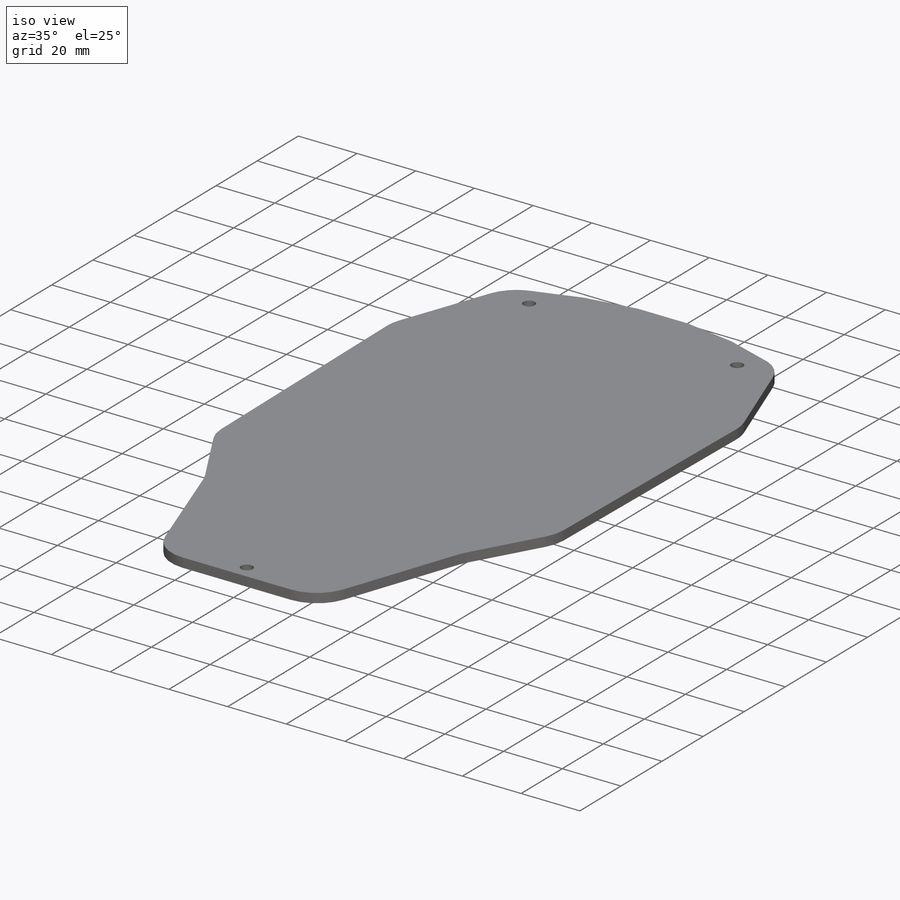
[diagram: iso view]
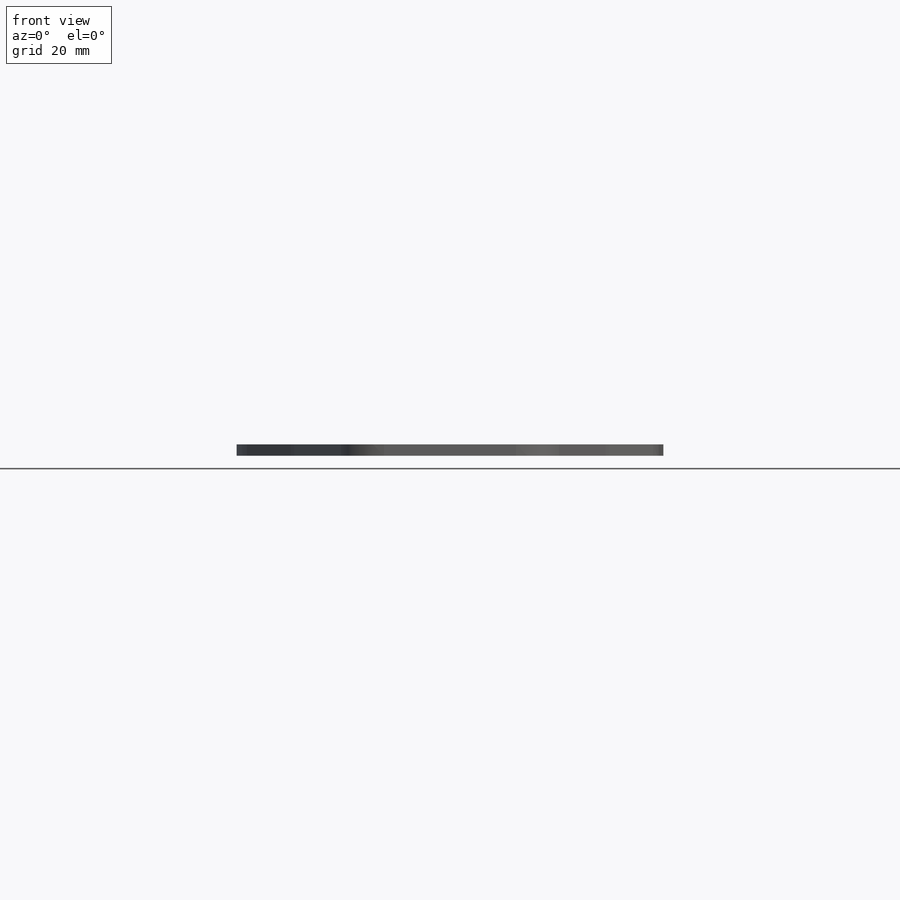
[diagram: front view]
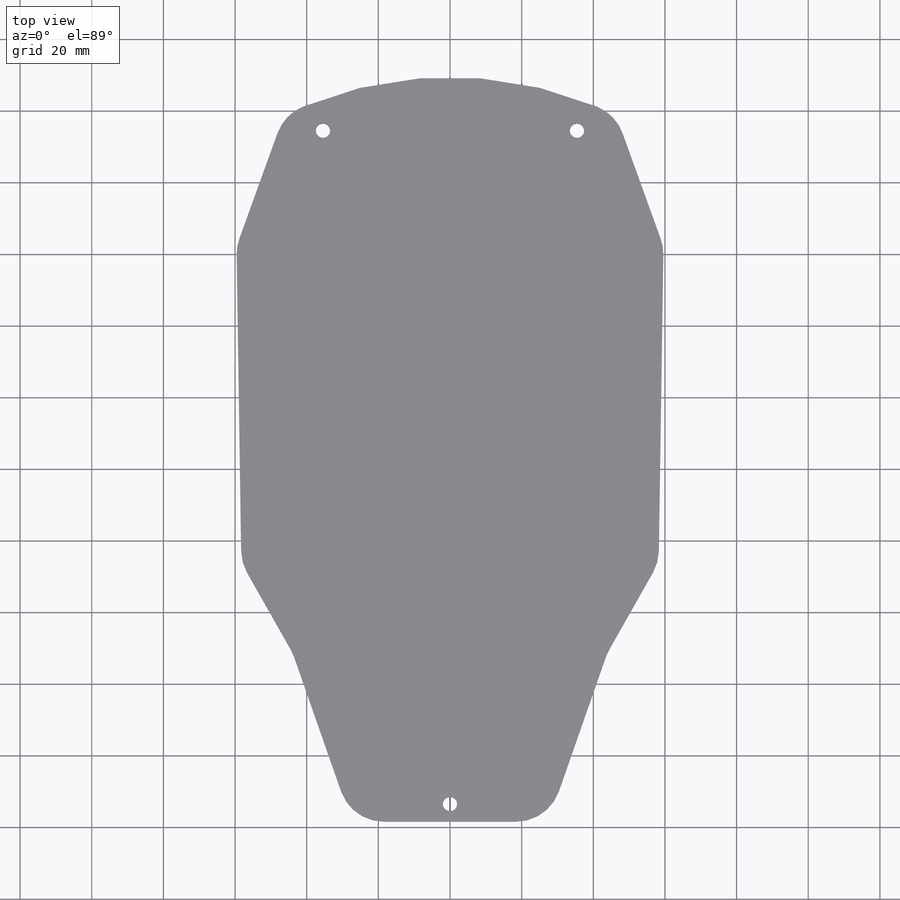
[diagram: top view]
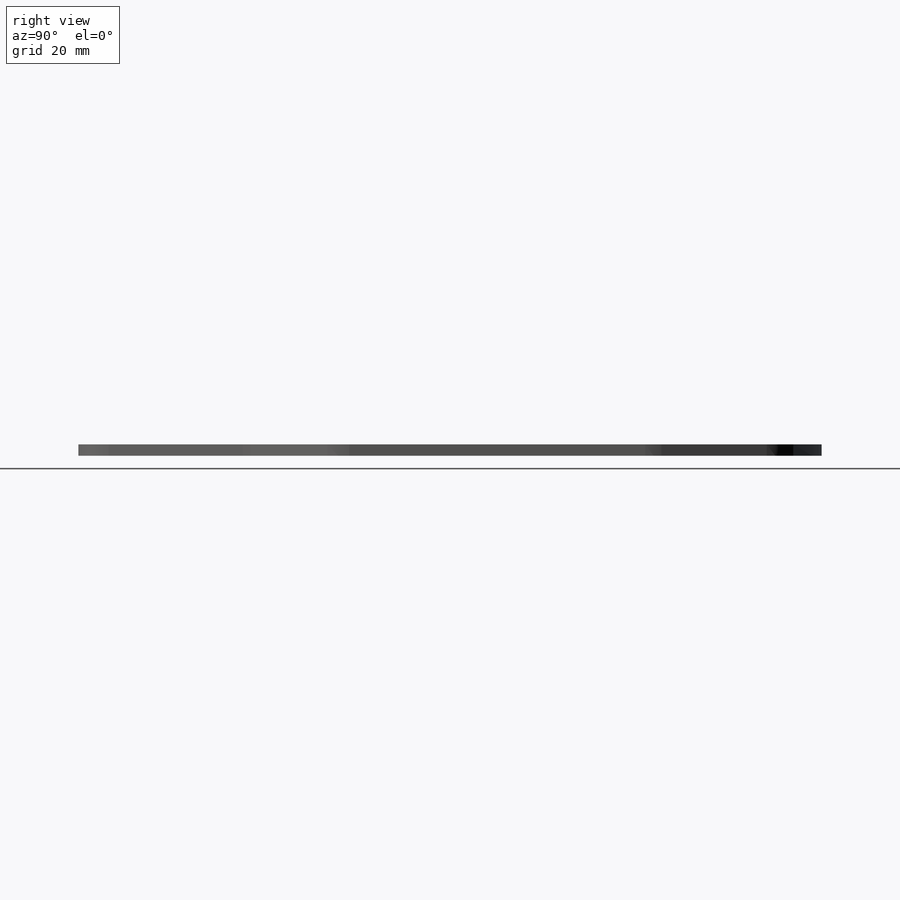
[diagram: right view]
SOLIDWORKS PART (.sldprt)
format: sldprt  version: not decoded by parser v0  size: 236,032 bytes
history: native  units: mm
features: sketch x3, material x1, extrude x1, hole x1, fillet x1 (+13 scaffold rows collapsed)
feature tree (20):
  scaffold x13  (default folders/planes/origin — collapsed)
  material  "Material <not specified>"
  sketch  "Sketch1"  dims[c1.D10=107.95mm c1.D1=28.575mm c1.D2=45.339mm c1.D3=59.944mm c1.D4=29.4005mm c1.D5=50.8mm c1.D6=88.9mm c1.D7=39.878mm c1.D8=119.888mm c1.D9=59.944mm c2.D8=~61.16955mm c2.D3=59.8424mm c2.D9=47.625mm c2.D11=1.5875mm]
  extrude  "Boss-Extrude1"  Depth=3.175mm
  hole  "5/32 (0.15625) Diameter Hole1"  Diameter=3.96875mm Depth=3.175mm
  sketch  "Sketch3"  dims[D1=~4.89585mm D2=70.9041mm D3=122.6312mm]
  sketch  "Sketch2"  dims[hole-wizard template sketch: 60 standard entries collapsed; hole parameters kept: c18.Thru Hole Depth=3.175mm]
  fillet  "Fillet1"  Radius=12.7mm
decode coverage: 6 of 6 modeling features carry decoded parameters
note: ~ marks probable driven/reference dimensions
note: suppression state not decoded; provenance and decode notes live in map.json
